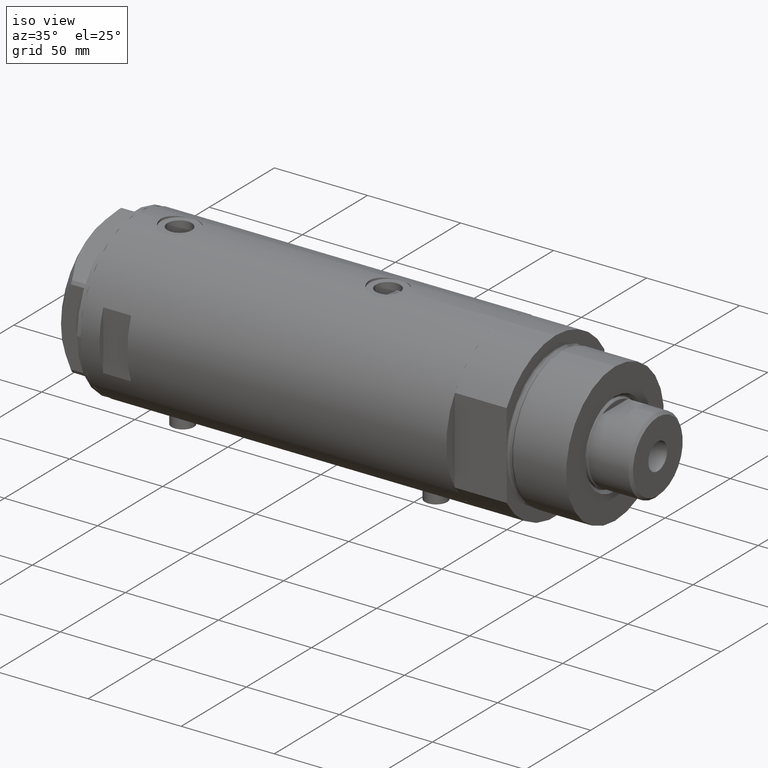
[diagram: clean part render]
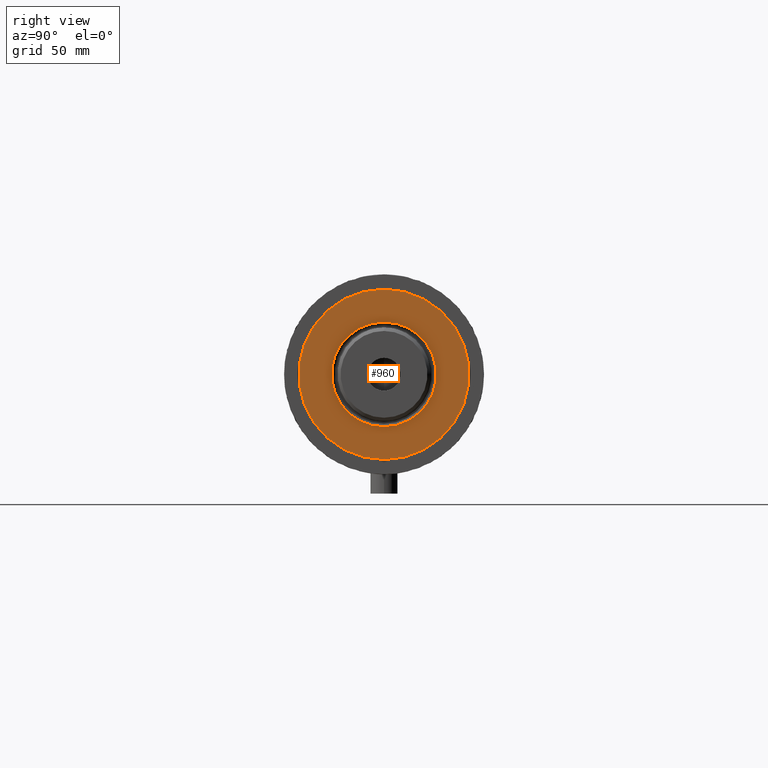
[diagram: tour spotlight — one face highlighted and labeled with its STEP entity id]
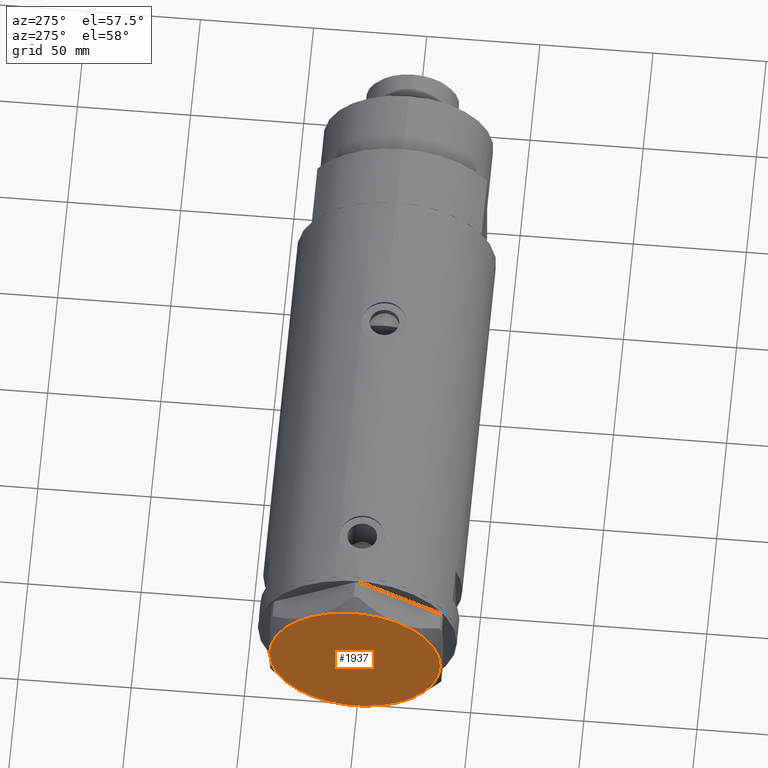
[diagram: tour spotlight — one face highlighted and labeled with its STEP entity id]
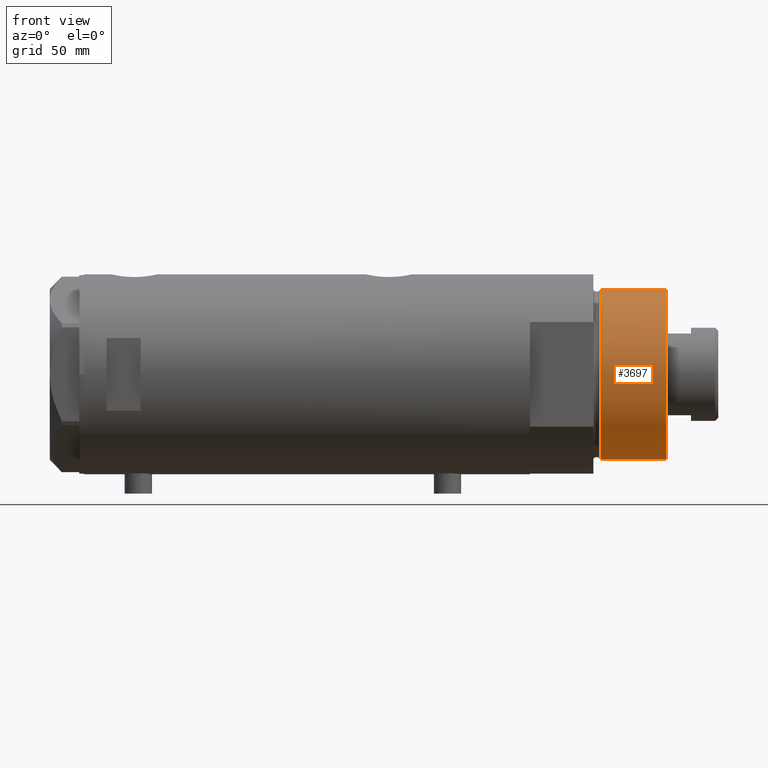
[diagram: tour spotlight — one face highlighted and labeled with its STEP entity id]
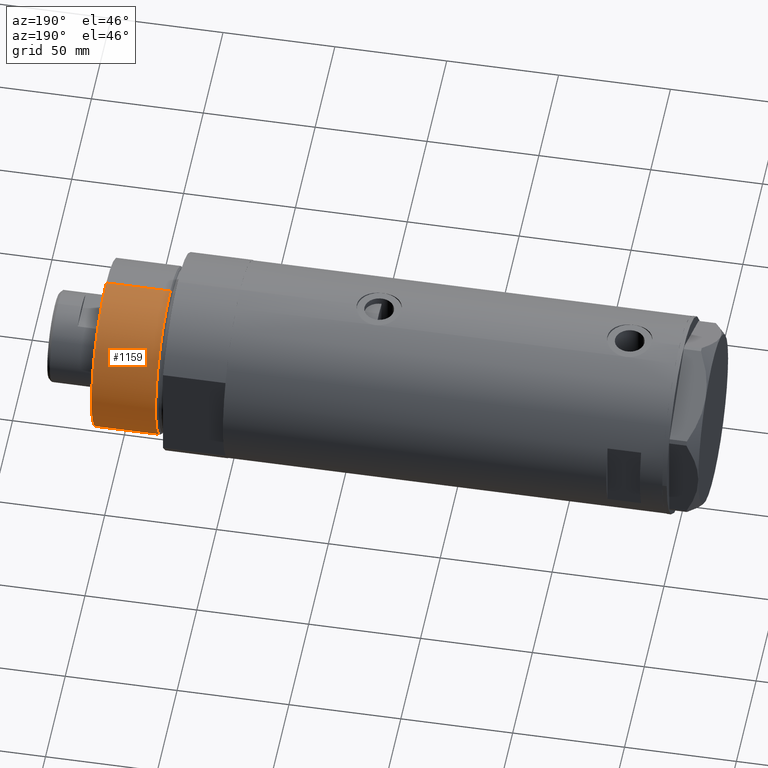
[diagram: tour spotlight — one face highlighted and labeled with its STEP entity id]
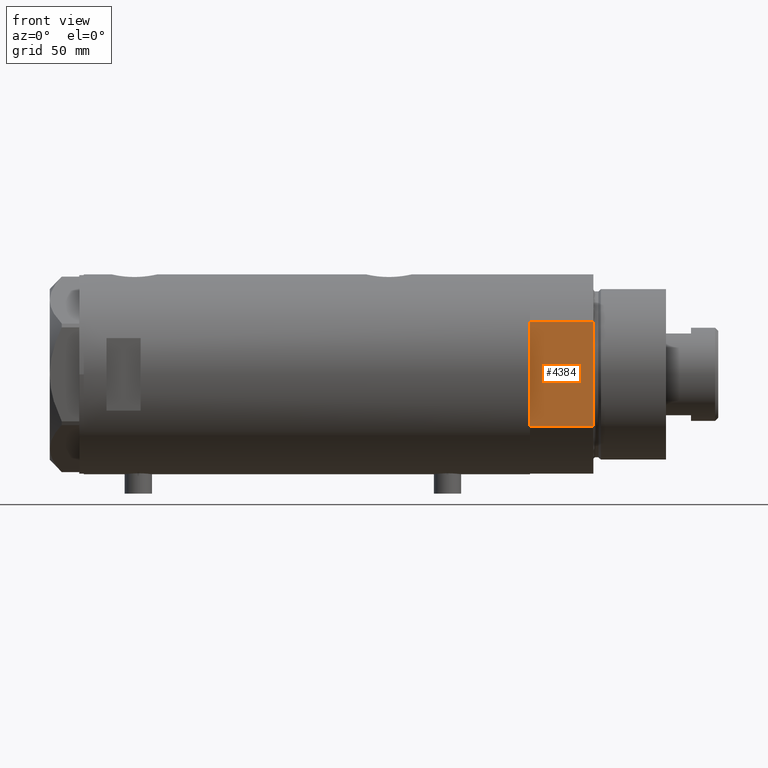
[diagram: tour spotlight — one face highlighted and labeled with its STEP entity id]
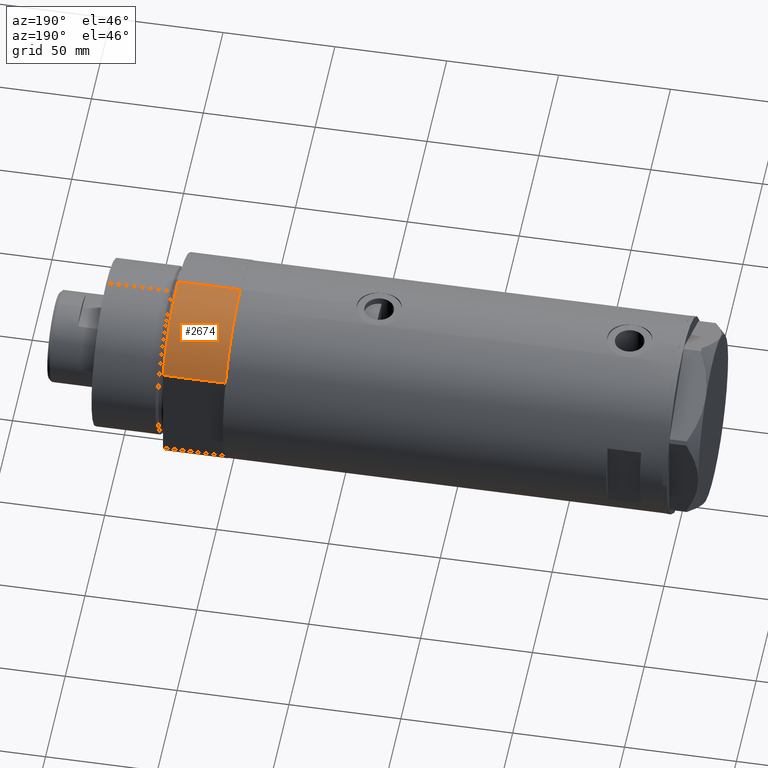
[diagram: tour spotlight — one face highlighted and labeled with its STEP entity id]
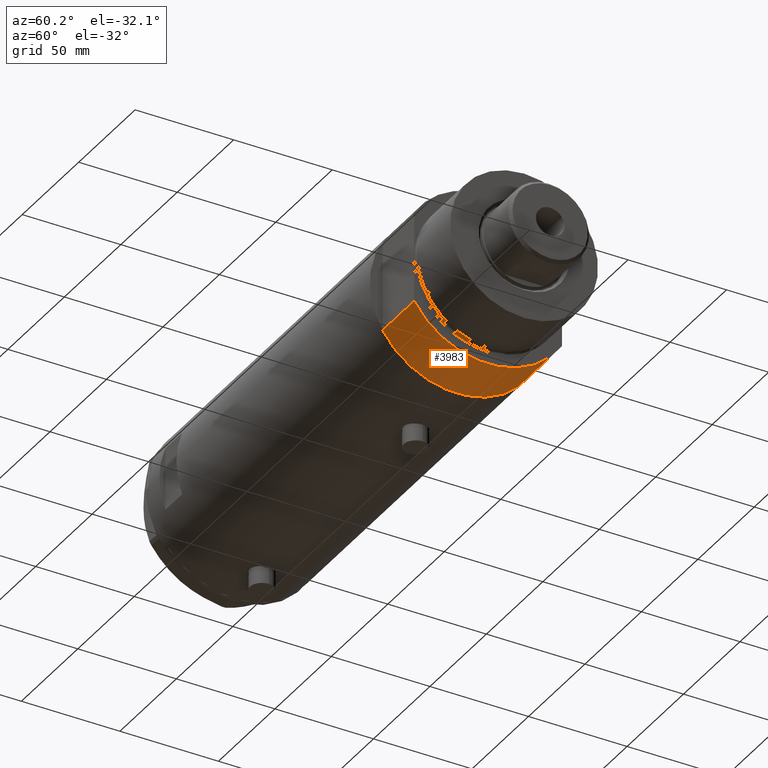
[diagram: tour spotlight — one face highlighted and labeled with its STEP entity id]
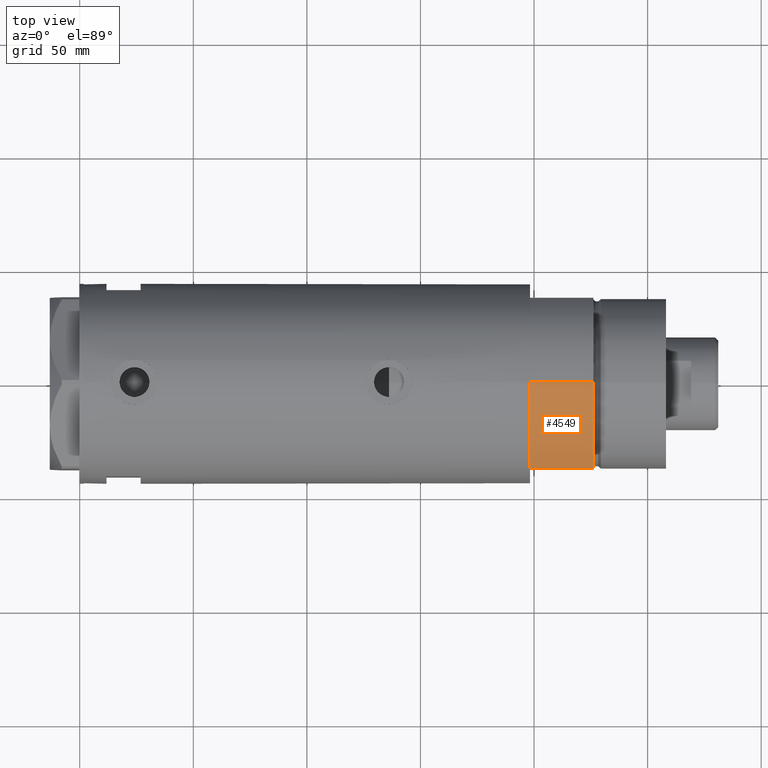
[diagram: tour spotlight — one face highlighted and labeled with its STEP entity id]
A machine part: a face-by-face anatomy tour. The part has 121 B-rep faces; the first image is the clean iso view, then the 8 largest visible faces are spotlighted one at a time (largest first), each with its STEP entity span.

Face 1 — right view, entity #960. In plain terms, the highlighted planar face has unit normal (1, 0, -0).
Definition (entity closure, byte-faithful):
#112 = VERTEX_POINT ( 'NONE', #3306 ) ;
#126 = AXIS2_PLACEMENT_3D ( 'NONE', #1141, #3520, #754 ) ;
#151 = DIRECTION ( 'NONE',  ( 0.000000000000000000, 0.000000000000000000, 1.000000000000000000 ) ) ;
#296 = PLANE ( 'NONE',  #620 ) ;
#344 = AXIS2_PLACEMENT_3D ( 'NONE', #1166, #3273, #4332 ) ;
#458 = CARTESIAN_POINT ( 'NONE',  ( 0.000000000000000000, 0.000000000000000000, 59.89999999999999147 ) ) ;
#502 = AXIS2_PLACEMENT_3D ( 'NONE', #1189, #151, #2589 ) ;
#620 = AXIS2_PLACEMENT_3D ( 'NONE', #1635, #1954, #2365 ) ;
#754 = DIRECTION ( 'NONE',  ( 1.000000000000000000, 0.000000000000000000, 0.000000000000000000 ) ) ;
#926 = CARTESIAN_POINT ( 'NONE',  ( 37.50000000000000711, 4.592425496802575156E-15, 59.89999999999999147 ) ) ;
#927 = ORIENTED_EDGE ( 'NONE', *, *, #4097, .T. ) ;
#960 = ADVANCED_FACE ( 'NONE', ( #3087, #3350 ), #296, .T. ) ;
#1141 = CARTESIAN_POINT ( 'NONE',  ( 0.000000000000000000, 0.000000000000000000, 59.89999999999999147 ) ) ;
#1166 = CARTESIAN_POINT ( 'NONE',  ( 0.000000000000000000, 0.000000000000000000, 59.89999999999999147 ) ) ;
#1189 = CARTESIAN_POINT ( 'NONE',  ( 0.000000000000000000, 0.000000000000000000, 59.89999999999999147 ) ) ;
#1348 = CARTESIAN_POINT ( 'NONE',  ( 23.05000000000002913, 0.000000000000000000, 59.89999999999999147 ) ) ;
#1377 = AXIS2_PLACEMENT_3D ( 'NONE', #458, #2940, #3277 ) ;
#1488 = CARTESIAN_POINT ( 'NONE',  ( -37.50000000000000711, 0.000000000000000000, 59.89999999999999147 ) ) ;
#1635 = CARTESIAN_POINT ( 'NONE',  ( 0.000000000000000000, 0.000000000000000000, 59.89999999999999147 ) ) ;
#1672 = CIRCLE ( 'NONE', #1377, 23.05000000000002913 ) ;
#1757 = ORIENTED_EDGE ( 'NONE', *, *, #3499, .T. ) ;
#1954 = DIRECTION ( 'NONE',  ( 0.000000000000000000, 0.000000000000000000, 1.000000000000000000 ) ) ;
#2000 = ORIENTED_EDGE ( 'NONE', *, *, #4038, .T. ) ;
#2365 = DIRECTION ( 'NONE',  ( 1.000000000000000000, 0.000000000000000000, -0.000000000000000000 ) ) ;
#2589 = DIRECTION ( 'NONE',  ( 1.000000000000000000, 0.000000000000000000, 0.000000000000000000 ) ) ;
#2766 = CIRCLE ( 'NONE', #344, 23.05000000000002913 ) ;
#2774 = EDGE_LOOP ( 'NONE', ( #1757, #927 ) ) ;
#2940 = DIRECTION ( 'NONE',  ( -0.000000000000000000, -0.000000000000000000, -1.000000000000000000 ) ) ;
#2963 = VERTEX_POINT ( 'NONE', #1488 ) ;
#3087 = FACE_BOUND ( 'NONE', #2774, .T. ) ;
#3100 = EDGE_LOOP ( 'NONE', ( #2000, #3946 ) ) ;
#3273 = DIRECTION ( 'NONE',  ( -0.000000000000000000, -0.000000000000000000, -1.000000000000000000 ) ) ;
#3277 = DIRECTION ( 'NONE',  ( 1.000000000000000000, 0.000000000000000000, 0.000000000000000000 ) ) ;
#3306 = CARTESIAN_POINT ( 'NONE',  ( -23.05000000000002913, 2.822810872034651791E-15, 59.89999999999999147 ) ) ;
#3350 = FACE_OUTER_BOUND ( 'NONE', #3100, .T. ) ;
#3499 = EDGE_CURVE ( 'NONE', #3610, #112, #2766, .T. ) ;
#3520 = DIRECTION ( 'NONE',  ( 0.000000000000000000, 0.000000000000000000, 1.000000000000000000 ) ) ;
#3610 = VERTEX_POINT ( 'NONE', #1348 ) ;
#3946 = ORIENTED_EDGE ( 'NONE', *, *, #4103, .T. ) ;
#4038 = EDGE_CURVE ( 'NONE', #2963, #4446, #4388, .T. ) ;
#4097 = EDGE_CURVE ( 'NONE', #112, #3610, #1672, .T. ) ;
#4103 = EDGE_CURVE ( 'NONE', #4446, #2963, #4526, .T. ) ;
#4332 = DIRECTION ( 'NONE',  ( 1.000000000000000000, 0.000000000000000000, 0.000000000000000000 ) ) ;
#4388 = CIRCLE ( 'NONE', #126, 37.50000000000000711 ) ;
#4446 = VERTEX_POINT ( 'NONE', #926 ) ;
#4526 = CIRCLE ( 'NONE', #502, 37.50000000000000711 ) ;

Face 2 — auxiliary view, entity #1937. In plain terms, the highlighted planar face has unit normal (-1, -0, 0).
Definition (entity closure, byte-faithful):
#4 = CARTESIAN_POINT ( 'NONE',  ( 0.000000000000000000, 0.000000000000000000, 13.00000000000000000 ) ) ;
#75 = VERTEX_POINT ( 'NONE', #1882 ) ;
#102 = DIRECTION ( 'NONE',  ( 0.000000000000000000, 0.000000000000000000, 1.000000000000000000 ) ) ;
#276 = AXIS2_PLACEMENT_3D ( 'NONE', #4, #3867, #677 ) ;
#291 = DIRECTION ( 'NONE',  ( 1.000000000000000000, 0.000000000000000000, 0.000000000000000000 ) ) ;
#301 = DIRECTION ( 'NONE',  ( 0.000000000000000000, 0.000000000000000000, 1.000000000000000000 ) ) ;
#319 = DIRECTION ( 'NONE',  ( 1.000000000000000000, 0.000000000000000000, 0.000000000000000000 ) ) ;
#423 = DIRECTION ( 'NONE',  ( 1.000000000000000000, 0.000000000000000000, 0.000000000000000000 ) ) ;
#457 = EDGE_CURVE ( 'NONE', #3925, #4039, #2010, .T. ) ;
#479 = AXIS2_PLACEMENT_3D ( 'NONE', #3091, #301, #319 ) ;
#608 = VERTEX_POINT ( 'NONE', #1410 ) ;
#677 = DIRECTION ( 'NONE',  ( 1.000000000000000000, 0.000000000000000000, 0.000000000000000000 ) ) ;
#781 = CARTESIAN_POINT ( 'NONE',  ( 0.000000000000000000, 0.000000000000000000, 13.00000000000000000 ) ) ;
#914 = DIRECTION ( 'NONE',  ( 0.000000000000000000, 0.000000000000000000, 1.000000000000000000 ) ) ;
#978 = DIRECTION ( 'NONE',  ( 0.000000000000000000, 0.000000000000000000, 1.000000000000000000 ) ) ;
#1123 = CARTESIAN_POINT ( 'NONE',  ( 37.75000000000000711, 1.802777518484591547E-14, 13.00000000000000000 ) ) ;
#1163 = CIRCLE ( 'NONE', #3855, 37.75000000000000000 ) ;
#1185 = EDGE_CURVE ( 'NONE', #608, #2738, #1580, .T. ) ;
#1314 = DIRECTION ( 'NONE',  ( 1.000000000000000000, 0.000000000000000000, 0.000000000000000000 ) ) ;
#1410 = CARTESIAN_POINT ( 'NONE',  ( -37.75000000000000000, -1.201851678989727067E-14, 13.00000000000000000 ) ) ;
#1580 = CIRCLE ( 'NONE', #479, 37.75000000000000000 ) ;
#1688 = EDGE_CURVE ( 'NONE', #1946, #3925, #2019, .T. ) ;
#1752 = ORIENTED_EDGE ( 'NONE', *, *, #1185, .T. ) ;
#1812 = FACE_OUTER_BOUND ( 'NONE', #3600, .T. ) ;
#1871 = CARTESIAN_POINT ( 'NONE',  ( 18.87499999999998579, -32.69245899286256218, 13.00000000000000000 ) ) ;
#1882 = CARTESIAN_POINT ( 'NONE',  ( -18.87499999999999645, 32.69245899286256218, 13.00000000000000000 ) ) ;
#1928 = ORIENTED_EDGE ( 'NONE', *, *, #2973, .T. ) ;
#1937 = ADVANCED_FACE ( 'NONE', ( #1812 ), #3247, .T. ) ;
#1946 = VERTEX_POINT ( 'NONE', #1871 ) ;
#2010 = CIRCLE ( 'NONE', #3545, 37.75000000000000000 ) ;
#2019 = CIRCLE ( 'NONE', #4501, 37.75000000000000000 ) ;
#2064 = DIRECTION ( 'NONE',  ( 0.000000000000000000, 0.000000000000000000, 1.000000000000000000 ) ) ;
#2159 = CARTESIAN_POINT ( 'NONE',  ( 18.87500000000000000, 32.69245899286255508, 13.00000000000000000 ) ) ;
#2571 = ORIENTED_EDGE ( 'NONE', *, *, #1688, .T. ) ;
#2659 = CARTESIAN_POINT ( 'NONE',  ( 0.000000000000000000, 0.000000000000000000, 13.00000000000000000 ) ) ;
#2738 = VERTEX_POINT ( 'NONE', #4058 ) ;
#2973 = EDGE_CURVE ( 'NONE', #4039, #75, #3122, .T. ) ;
#3019 = ORIENTED_EDGE ( 'NONE', *, *, #3871, .T. ) ;
#3058 = CIRCLE ( 'NONE', #276, 37.75000000000000000 ) ;
#3091 = CARTESIAN_POINT ( 'NONE',  ( 0.000000000000000000, 0.000000000000000000, 13.00000000000000000 ) ) ;
#3122 = CIRCLE ( 'NONE', #4008, 37.75000000000000000 ) ;
#3182 = ORIENTED_EDGE ( 'NONE', *, *, #3678, .T. ) ;
#3200 = DIRECTION ( 'NONE',  ( 1.000000000000000000, 0.000000000000000000, -0.000000000000000000 ) ) ;
#3247 = PLANE ( 'NONE',  #3932 ) ;
#3320 = DIRECTION ( 'NONE',  ( 1.000000000000000000, 0.000000000000000000, 0.000000000000000000 ) ) ;
#3431 = CARTESIAN_POINT ( 'NONE',  ( 0.000000000000000000, 0.000000000000000000, 13.00000000000000000 ) ) ;
#3454 = CARTESIAN_POINT ( 'NONE',  ( 0.000000000000000000, 0.000000000000000000, 13.00000000000000000 ) ) ;
#3545 = AXIS2_PLACEMENT_3D ( 'NONE', #2659, #914, #3320 ) ;
#3592 = DIRECTION ( 'NONE',  ( 0.000000000000000000, 0.000000000000000000, 1.000000000000000000 ) ) ;
#3600 = EDGE_LOOP ( 'NONE', ( #2571, #3727, #1928, #3019, #1752, #3182 ) ) ;
#3678 = EDGE_CURVE ( 'NONE', #2738, #1946, #1163, .T. ) ;
#3727 = ORIENTED_EDGE ( 'NONE', *, *, #457, .T. ) ;
#3855 = AXIS2_PLACEMENT_3D ( 'NONE', #3454, #2064, #1314 ) ;
#3867 = DIRECTION ( 'NONE',  ( 0.000000000000000000, 0.000000000000000000, 1.000000000000000000 ) ) ;
#3871 = EDGE_CURVE ( 'NONE', #75, #608, #3058, .T. ) ;
#3907 = CARTESIAN_POINT ( 'NONE',  ( 0.000000000000000000, 0.000000000000000000, 13.00000000000000000 ) ) ;
#3925 = VERTEX_POINT ( 'NONE', #1123 ) ;
#3932 = AXIS2_PLACEMENT_3D ( 'NONE', #781, #102, #3200 ) ;
#4008 = AXIS2_PLACEMENT_3D ( 'NONE', #3907, #3592, #423 ) ;
#4039 = VERTEX_POINT ( 'NONE', #2159 ) ;
#4058 = CARTESIAN_POINT ( 'NONE',  ( -18.87499999999999645, -32.69245899286255508, 13.00000000000000000 ) ) ;
#4501 = AXIS2_PLACEMENT_3D ( 'NONE', #3431, #978, #291 ) ;

Face 3 — front view, entity #3697. In plain terms, the highlighted cylindrical surface (partial cylindrical patch) has radius 37.5 mm, axis along (-1, -0, 0).
Definition (entity closure, byte-faithful):
#35 = ORIENTED_EDGE ( 'NONE', *, *, #4038, .F. ) ;
#101 = LINE ( 'NONE', #808, #1868 ) ;
#126 = AXIS2_PLACEMENT_3D ( 'NONE', #1141, #3520, #754 ) ;
#265 = CARTESIAN_POINT ( 'NONE',  ( 37.50000000000000711, 4.592425496802575156E-15, 31.27384048104054415 ) ) ;
#390 = CARTESIAN_POINT ( 'NONE',  ( 37.50000000000000711, 4.592425496802575156E-15, 59.89999999999999147 ) ) ;
#396 = ORIENTED_EDGE ( 'NONE', *, *, #4204, .T. ) ;
#611 = EDGE_CURVE ( 'NONE', #2963, #2715, #101, .T. ) ;
#718 = CIRCLE ( 'NONE', #3205, 37.50000000000000711 ) ;
#754 = DIRECTION ( 'NONE',  ( 1.000000000000000000, 0.000000000000000000, 0.000000000000000000 ) ) ;
#808 = CARTESIAN_POINT ( 'NONE',  ( -37.50000000000000711, 0.000000000000000000, 59.89999999999999147 ) ) ;
#926 = CARTESIAN_POINT ( 'NONE',  ( 37.50000000000000711, 4.592425496802575156E-15, 59.89999999999999147 ) ) ;
#949 = CARTESIAN_POINT ( 'NONE',  ( 0.000000000000000000, 0.000000000000000000, 59.89999999999999147 ) ) ;
#1079 = AXIS2_PLACEMENT_3D ( 'NONE', #949, #1677, #4451 ) ;
#1141 = CARTESIAN_POINT ( 'NONE',  ( 0.000000000000000000, 0.000000000000000000, 59.89999999999999147 ) ) ;
#1259 = ORIENTED_EDGE ( 'NONE', *, *, #1321, .F. ) ;
#1321 = EDGE_CURVE ( 'NONE', #4446, #1685, #3973, .T. ) ;
#1384 = EDGE_LOOP ( 'NONE', ( #1259, #35, #3301, #396 ) ) ;
#1488 = CARTESIAN_POINT ( 'NONE',  ( -37.50000000000000711, 0.000000000000000000, 59.89999999999999147 ) ) ;
#1677 = DIRECTION ( 'NONE',  ( -0.000000000000000000, -0.000000000000000000, -1.000000000000000000 ) ) ;
#1685 = VERTEX_POINT ( 'NONE', #265 ) ;
#1868 = VECTOR ( 'NONE', #3888, 1000.000000000000000 ) ;
#2175 = VECTOR ( 'NONE', #2891, 1000.000000000000000 ) ;
#2357 = CARTESIAN_POINT ( 'NONE',  ( 0.000000000000000000, 0.000000000000000000, 31.27384048104054415 ) ) ;
#2372 = DIRECTION ( 'NONE',  ( 1.000000000000000000, 0.000000000000000000, 0.000000000000000000 ) ) ;
#2715 = VERTEX_POINT ( 'NONE', #4391 ) ;
#2891 = DIRECTION ( 'NONE',  ( -0.000000000000000000, -0.000000000000000000, -1.000000000000000000 ) ) ;
#2963 = VERTEX_POINT ( 'NONE', #1488 ) ;
#3205 = AXIS2_PLACEMENT_3D ( 'NONE', #2357, #3380, #2372 ) ;
#3301 = ORIENTED_EDGE ( 'NONE', *, *, #611, .T. ) ;
#3380 = DIRECTION ( 'NONE',  ( -0.000000000000000000, -0.000000000000000000, 1.000000000000000000 ) ) ;
#3520 = DIRECTION ( 'NONE',  ( 0.000000000000000000, 0.000000000000000000, 1.000000000000000000 ) ) ;
#3697 = ADVANCED_FACE ( 'NONE', ( #4110 ), #4087, .T. ) ;
#3888 = DIRECTION ( 'NONE',  ( -0.000000000000000000, -0.000000000000000000, -1.000000000000000000 ) ) ;
#3973 = LINE ( 'NONE', #390, #2175 ) ;
#4038 = EDGE_CURVE ( 'NONE', #2963, #4446, #4388, .T. ) ;
#4087 = CYLINDRICAL_SURFACE ( 'NONE', #1079, 37.50000000000000711 ) ;
#4110 = FACE_OUTER_BOUND ( 'NONE', #1384, .T. ) ;
#4204 = EDGE_CURVE ( 'NONE', #2715, #1685, #718, .T. ) ;
#4388 = CIRCLE ( 'NONE', #126, 37.50000000000000711 ) ;
#4391 = CARTESIAN_POINT ( 'NONE',  ( -37.50000000000000711, 0.000000000000000000, 31.27384048104054415 ) ) ;
#4446 = VERTEX_POINT ( 'NONE', #926 ) ;
#4451 = DIRECTION ( 'NONE',  ( -1.000000000000000000, 0.000000000000000000, 0.000000000000000000 ) ) ;

Face 4 — auxiliary view, entity #1159. In plain terms, the highlighted cylindrical surface (partial cylindrical patch) has radius 37.5 mm, axis along (-1, -0, 0).
Definition (entity closure, byte-faithful):
#101 = LINE ( 'NONE', #808, #1868 ) ;
#151 = DIRECTION ( 'NONE',  ( 0.000000000000000000, 0.000000000000000000, 1.000000000000000000 ) ) ;
#265 = CARTESIAN_POINT ( 'NONE',  ( 37.50000000000000711, 4.592425496802575156E-15, 31.27384048104054415 ) ) ;
#390 = CARTESIAN_POINT ( 'NONE',  ( 37.50000000000000711, 4.592425496802575156E-15, 59.89999999999999147 ) ) ;
#502 = AXIS2_PLACEMENT_3D ( 'NONE', #1189, #151, #2589 ) ;
#611 = EDGE_CURVE ( 'NONE', #2963, #2715, #101, .T. ) ;
#808 = CARTESIAN_POINT ( 'NONE',  ( -37.50000000000000711, 0.000000000000000000, 59.89999999999999147 ) ) ;
#926 = CARTESIAN_POINT ( 'NONE',  ( 37.50000000000000711, 4.592425496802575156E-15, 59.89999999999999147 ) ) ;
#1059 = AXIS2_PLACEMENT_3D ( 'NONE', #2919, #3966, #1876 ) ;
#1159 = ADVANCED_FACE ( 'NONE', ( #3909 ), #1507, .T. ) ;
#1189 = CARTESIAN_POINT ( 'NONE',  ( 0.000000000000000000, 0.000000000000000000, 59.89999999999999147 ) ) ;
#1321 = EDGE_CURVE ( 'NONE', #4446, #1685, #3973, .T. ) ;
#1488 = CARTESIAN_POINT ( 'NONE',  ( -37.50000000000000711, 0.000000000000000000, 59.89999999999999147 ) ) ;
#1499 = EDGE_CURVE ( 'NONE', #1685, #2715, #3107, .T. ) ;
#1507 = CYLINDRICAL_SURFACE ( 'NONE', #3038, 37.50000000000000711 ) ;
#1685 = VERTEX_POINT ( 'NONE', #265 ) ;
#1861 = ORIENTED_EDGE ( 'NONE', *, *, #4103, .F. ) ;
#1868 = VECTOR ( 'NONE', #3888, 1000.000000000000000 ) ;
#1876 = DIRECTION ( 'NONE',  ( 1.000000000000000000, 0.000000000000000000, 0.000000000000000000 ) ) ;
#2175 = VECTOR ( 'NONE', #2891, 1000.000000000000000 ) ;
#2178 = CARTESIAN_POINT ( 'NONE',  ( 0.000000000000000000, 0.000000000000000000, 59.89999999999999147 ) ) ;
#2589 = DIRECTION ( 'NONE',  ( 1.000000000000000000, 0.000000000000000000, 0.000000000000000000 ) ) ;
#2715 = VERTEX_POINT ( 'NONE', #4391 ) ;
#2891 = DIRECTION ( 'NONE',  ( -0.000000000000000000, -0.000000000000000000, -1.000000000000000000 ) ) ;
#2894 = DIRECTION ( 'NONE',  ( -0.000000000000000000, -0.000000000000000000, -1.000000000000000000 ) ) ;
#2919 = CARTESIAN_POINT ( 'NONE',  ( 0.000000000000000000, 0.000000000000000000, 31.27384048104054415 ) ) ;
#2963 = VERTEX_POINT ( 'NONE', #1488 ) ;
#3038 = AXIS2_PLACEMENT_3D ( 'NONE', #2178, #2894, #3935 ) ;
#3107 = CIRCLE ( 'NONE', #1059, 37.50000000000000711 ) ;
#3781 = EDGE_LOOP ( 'NONE', ( #1861, #3821, #4162, #3947 ) ) ;
#3821 = ORIENTED_EDGE ( 'NONE', *, *, #1321, .T. ) ;
#3888 = DIRECTION ( 'NONE',  ( -0.000000000000000000, -0.000000000000000000, -1.000000000000000000 ) ) ;
#3909 = FACE_OUTER_BOUND ( 'NONE', #3781, .T. ) ;
#3935 = DIRECTION ( 'NONE',  ( -1.000000000000000000, 0.000000000000000000, 0.000000000000000000 ) ) ;
#3947 = ORIENTED_EDGE ( 'NONE', *, *, #611, .F. ) ;
#3966 = DIRECTION ( 'NONE',  ( -0.000000000000000000, -0.000000000000000000, 1.000000000000000000 ) ) ;
#3973 = LINE ( 'NONE', #390, #2175 ) ;
#4103 = EDGE_CURVE ( 'NONE', #4446, #2963, #4526, .T. ) ;
#4162 = ORIENTED_EDGE ( 'NONE', *, *, #1499, .T. ) ;
#4391 = CARTESIAN_POINT ( 'NONE',  ( -37.50000000000000711, 0.000000000000000000, 31.27384048104054415 ) ) ;
#4446 = VERTEX_POINT ( 'NONE', #926 ) ;
#4526 = CIRCLE ( 'NONE', #502, 37.50000000000000711 ) ;

Face 5 — front view, entity #4384. In plain terms, the highlighted planar face has unit normal (-0, 1, 0).
Definition (entity closure, byte-faithful):
#18 = CARTESIAN_POINT ( 'NONE',  ( -23.01629857296780557, -37.50000000000000000, 0.000000000000000000 ) ) ;
#123 = VECTOR ( 'NONE', #969, 1000.000000000000000 ) ;
#166 = EDGE_CURVE ( 'NONE', #633, #1136, #3389, .T. ) ;
#179 = CARTESIAN_POINT ( 'NONE',  ( -23.01629857296780557, -37.50000000000000000, 27.89999999999999858 ) ) ;
#331 = DIRECTION ( 'NONE',  ( -1.000000000000000000, -0.000000000000000000, -0.000000000000000000 ) ) ;
#345 = ORIENTED_EDGE ( 'NONE', *, *, #2885, .F. ) ;
#382 = VERTEX_POINT ( 'NONE', #1056 ) ;
#408 = VECTOR ( 'NONE', #1842, 1000.000000000000000 ) ;
#436 = LINE ( 'NONE', #3232, #408 ) ;
#465 = CARTESIAN_POINT ( 'NONE',  ( -13.91941090707505957, -37.50000000000000000, 0.000000000000000000 ) ) ;
#601 = CARTESIAN_POINT ( 'NONE',  ( -23.01629857296780557, -37.50000000000000000, 0.000000000000000000 ) ) ;
#633 = VERTEX_POINT ( 'NONE', #1494 ) ;
#785 = VECTOR ( 'NONE', #4123, 1000.000000000000000 ) ;
#951 = DIRECTION ( 'NONE',  ( -0.000000000000000000, 1.000000000000000000, 0.000000000000000000 ) ) ;
#969 = DIRECTION ( 'NONE',  ( -0.000000000000000000, -0.000000000000000000, 1.000000000000000000 ) ) ;
#1017 = LINE ( 'NONE', #601, #2324 ) ;
#1056 = CARTESIAN_POINT ( 'NONE',  ( 23.01629857296780557, -37.50000000000000000, 27.89999999999999858 ) ) ;
#1136 = VERTEX_POINT ( 'NONE', #4236 ) ;
#1354 = VERTEX_POINT ( 'NONE', #465 ) ;
#1475 = ORIENTED_EDGE ( 'NONE', *, *, #166, .T. ) ;
#1476 = EDGE_CURVE ( 'NONE', #382, #633, #436, .T. ) ;
#1494 = CARTESIAN_POINT ( 'NONE',  ( 0.000000000000000000, -37.50000000000000000, 27.89999999999999858 ) ) ;
#1632 = EDGE_CURVE ( 'NONE', #3608, #1136, #2008, .T. ) ;
#1842 = DIRECTION ( 'NONE',  ( -1.000000000000000000, -0.000000000000000000, -0.000000000000000000 ) ) ;
#1955 = CARTESIAN_POINT ( 'NONE',  ( -23.01629857296780557, -37.50000000000000000, 0.000000000000000000 ) ) ;
#2008 = LINE ( 'NONE', #4464, #785 ) ;
#2023 = ORIENTED_EDGE ( 'NONE', *, *, #1632, .F. ) ;
#2055 = EDGE_CURVE ( 'NONE', #1354, #3608, #3379, .T. ) ;
#2082 = LINE ( 'NONE', #2881, #4020 ) ;
#2196 = DIRECTION ( 'NONE',  ( -1.000000000000000000, -0.000000000000000000, -0.000000000000000000 ) ) ;
#2244 = VECTOR ( 'NONE', #3045, 1000.000000000000000 ) ;
#2272 = VERTEX_POINT ( 'NONE', #3011 ) ;
#2324 = VECTOR ( 'NONE', #2419, 1000.000000000000000 ) ;
#2385 = LINE ( 'NONE', #2751, #123 ) ;
#2419 = DIRECTION ( 'NONE',  ( -1.000000000000000000, -0.000000000000000000, -0.000000000000000000 ) ) ;
#2429 = ORIENTED_EDGE ( 'NONE', *, *, #1476, .T. ) ;
#2631 = PLANE ( 'NONE',  #3944 ) ;
#2751 = CARTESIAN_POINT ( 'NONE',  ( 23.01629857296780557, -37.50000000000000000, 0.000000000000000000 ) ) ;
#2835 = VECTOR ( 'NONE', #2196, 1000.000000000000000 ) ;
#2881 = CARTESIAN_POINT ( 'NONE',  ( -23.01629857296780557, -37.50000000000000000, 0.000000000000000000 ) ) ;
#2885 = EDGE_CURVE ( 'NONE', #2272, #1354, #1017, .T. ) ;
#3011 = CARTESIAN_POINT ( 'NONE',  ( 13.91941090707505957, -37.50000000000000000, 0.000000000000000000 ) ) ;
#3045 = DIRECTION ( 'NONE',  ( -1.000000000000000000, -0.000000000000000000, -0.000000000000000000 ) ) ;
#3159 = VERTEX_POINT ( 'NONE', #3510 ) ;
#3232 = CARTESIAN_POINT ( 'NONE',  ( -23.01629857296780557, -37.50000000000000000, 27.89999999999999858 ) ) ;
#3379 = LINE ( 'NONE', #18, #2835 ) ;
#3389 = LINE ( 'NONE', #179, #2244 ) ;
#3433 = ORIENTED_EDGE ( 'NONE', *, *, #3956, .F. ) ;
#3510 = CARTESIAN_POINT ( 'NONE',  ( 23.01629857296780557, -37.50000000000000000, 0.000000000000000000 ) ) ;
#3608 = VERTEX_POINT ( 'NONE', #3769 ) ;
#3611 = EDGE_CURVE ( 'NONE', #3159, #382, #2385, .T. ) ;
#3715 = DIRECTION ( 'NONE',  ( 0.000000000000000000, -0.000000000000000000, 1.000000000000000000 ) ) ;
#3769 = CARTESIAN_POINT ( 'NONE',  ( -23.01629857296780557, -37.50000000000000000, 0.000000000000000000 ) ) ;
#3944 = AXIS2_PLACEMENT_3D ( 'NONE', #1955, #951, #3715 ) ;
#3956 = EDGE_CURVE ( 'NONE', #3159, #2272, #2082, .T. ) ;
#4020 = VECTOR ( 'NONE', #331, 1000.000000000000000 ) ;
#4090 = FACE_OUTER_BOUND ( 'NONE', #4428, .T. ) ;
#4123 = DIRECTION ( 'NONE',  ( -0.000000000000000000, -0.000000000000000000, 1.000000000000000000 ) ) ;
#4178 = ORIENTED_EDGE ( 'NONE', *, *, #2055, .F. ) ;
#4236 = CARTESIAN_POINT ( 'NONE',  ( -23.01629857296780557, -37.50000000000000000, 27.89999999999999858 ) ) ;
#4384 = ADVANCED_FACE ( 'NONE', ( #4090 ), #2631, .F. ) ;
#4428 = EDGE_LOOP ( 'NONE', ( #2429, #1475, #2023, #4178, #345, #3433, #4495 ) ) ;
#4464 = CARTESIAN_POINT ( 'NONE',  ( -23.01629857296780557, -37.50000000000000000, 0.000000000000000000 ) ) ;
#4495 = ORIENTED_EDGE ( 'NONE', *, *, #3611, .T. ) ;

Face 6 — auxiliary view, entity #2674. In plain terms, the highlighted cylindrical surface (partial cylindrical patch) has radius 44 mm, axis along (-1, -0, 0).
Definition (entity closure, byte-faithful):
#137 = CARTESIAN_POINT ( 'NONE',  ( -23.01629857296780557, 37.50000000000000000, 27.89999999999999858 ) ) ;
#352 = ORIENTED_EDGE ( 'NONE', *, *, #3189, .F. ) ;
#418 = VERTEX_POINT ( 'NONE', #137 ) ;
#430 = CIRCLE ( 'NONE', #1381, 44.00000000000000000 ) ;
#687 = DIRECTION ( 'NONE',  ( 1.000000000000000000, 0.000000000000000000, 0.000000000000000000 ) ) ;
#743 = LINE ( 'NONE', #821, #2694 ) ;
#821 = CARTESIAN_POINT ( 'NONE',  ( -23.01629857296780557, 37.50000000000000000, 0.000000000000000000 ) ) ;
#838 = CARTESIAN_POINT ( 'NONE',  ( -44.00000000000000000, 0.000000000000000000, 27.89999999999999858 ) ) ;
#861 = DIRECTION ( 'NONE',  ( -0.000000000000000000, -0.000000000000000000, -1.000000000000000000 ) ) ;
#1024 = VERTEX_POINT ( 'NONE', #1103 ) ;
#1033 = DIRECTION ( 'NONE',  ( 0.000000000000000000, 0.000000000000000000, 1.000000000000000000 ) ) ;
#1103 = CARTESIAN_POINT ( 'NONE',  ( -44.00000000000000000, 0.000000000000000000, 0.000000000000000000 ) ) ;
#1155 = CYLINDRICAL_SURFACE ( 'NONE', #1518, 44.00000000000000000 ) ;
#1225 = DIRECTION ( 'NONE',  ( 0.000000000000000000, 0.000000000000000000, 1.000000000000000000 ) ) ;
#1339 = VERTEX_POINT ( 'NONE', #838 ) ;
#1381 = AXIS2_PLACEMENT_3D ( 'NONE', #2323, #1225, #4026 ) ;
#1458 = CARTESIAN_POINT ( 'NONE',  ( 0.000000000000000000, 0.000000000000000000, 27.89999999999999858 ) ) ;
#1518 = AXIS2_PLACEMENT_3D ( 'NONE', #2946, #861, #1910 ) ;
#1532 = VECTOR ( 'NONE', #1624, 1000.000000000000000 ) ;
#1624 = DIRECTION ( 'NONE',  ( -0.000000000000000000, -0.000000000000000000, -1.000000000000000000 ) ) ;
#1668 = CARTESIAN_POINT ( 'NONE',  ( -44.00000000000000000, 0.000000000000000000, 27.89999999999999858 ) ) ;
#1738 = CIRCLE ( 'NONE', #4381, 44.00000000000000000 ) ;
#1900 = ORIENTED_EDGE ( 'NONE', *, *, #4502, .T. ) ;
#1910 = DIRECTION ( 'NONE',  ( -1.000000000000000000, 0.000000000000000000, 0.000000000000000000 ) ) ;
#1925 = VERTEX_POINT ( 'NONE', #3939 ) ;
#2068 = ORIENTED_EDGE ( 'NONE', *, *, #3229, .F. ) ;
#2323 = CARTESIAN_POINT ( 'NONE',  ( 0.000000000000000000, 0.000000000000000000, 0.000000000000000000 ) ) ;
#2548 = EDGE_LOOP ( 'NONE', ( #3345, #352, #2068, #1900 ) ) ;
#2578 = DIRECTION ( 'NONE',  ( -0.000000000000000000, -0.000000000000000000, 1.000000000000000000 ) ) ;
#2674 = ADVANCED_FACE ( 'NONE', ( #3308 ), #1155, .T. ) ;
#2694 = VECTOR ( 'NONE', #2578, 1000.000000000000000 ) ;
#2946 = CARTESIAN_POINT ( 'NONE',  ( 0.000000000000000000, 0.000000000000000000, 27.89999999999999858 ) ) ;
#3039 = LINE ( 'NONE', #1668, #1532 ) ;
#3189 = EDGE_CURVE ( 'NONE', #418, #1339, #1738, .T. ) ;
#3229 = EDGE_CURVE ( 'NONE', #1925, #418, #743, .T. ) ;
#3308 = FACE_OUTER_BOUND ( 'NONE', #2548, .T. ) ;
#3345 = ORIENTED_EDGE ( 'NONE', *, *, #4175, .F. ) ;
#3939 = CARTESIAN_POINT ( 'NONE',  ( -23.01629857296780557, 37.50000000000000000, 0.000000000000000000 ) ) ;
#4026 = DIRECTION ( 'NONE',  ( 1.000000000000000000, 0.000000000000000000, 0.000000000000000000 ) ) ;
#4175 = EDGE_CURVE ( 'NONE', #1339, #1024, #3039, .T. ) ;
#4381 = AXIS2_PLACEMENT_3D ( 'NONE', #1458, #1033, #687 ) ;
#4502 = EDGE_CURVE ( 'NONE', #1925, #1024, #430, .T. ) ;

Face 7 — auxiliary view, entity #3983. In plain terms, the highlighted cylindrical surface (partial cylindrical patch) has radius 44 mm, axis along (-1, -0, 0).
Definition (entity closure, byte-faithful):
#123 = VECTOR ( 'NONE', #969, 1000.000000000000000 ) ;
#201 = CIRCLE ( 'NONE', #3425, 44.00000000000000000 ) ;
#320 = DIRECTION ( 'NONE',  ( 0.000000000000000000, 0.000000000000000000, 1.000000000000000000 ) ) ;
#357 = CARTESIAN_POINT ( 'NONE',  ( 23.01629857296780557, 37.50000000000000000, 27.89999999999999858 ) ) ;
#382 = VERTEX_POINT ( 'NONE', #1056 ) ;
#503 = CARTESIAN_POINT ( 'NONE',  ( 0.000000000000000000, 0.000000000000000000, 27.89999999999999858 ) ) ;
#541 = ORIENTED_EDGE ( 'NONE', *, *, #4095, .F. ) ;
#629 = CIRCLE ( 'NONE', #2252, 44.00000000000000000 ) ;
#966 = EDGE_CURVE ( 'NONE', #4079, #2089, #3007, .T. ) ;
#969 = DIRECTION ( 'NONE',  ( -0.000000000000000000, -0.000000000000000000, 1.000000000000000000 ) ) ;
#1056 = CARTESIAN_POINT ( 'NONE',  ( 23.01629857296780557, -37.50000000000000000, 27.89999999999999858 ) ) ;
#1070 = FACE_OUTER_BOUND ( 'NONE', #3228, .T. ) ;
#1085 = ORIENTED_EDGE ( 'NONE', *, *, #966, .T. ) ;
#1331 = CARTESIAN_POINT ( 'NONE',  ( 23.01629857296780557, 37.50000000000000000, 0.000000000000000000 ) ) ;
#1393 = DIRECTION ( 'NONE',  ( -1.000000000000000000, 0.000000000000000000, 0.000000000000000000 ) ) ;
#1457 = CARTESIAN_POINT ( 'NONE',  ( 0.000000000000000000, 0.000000000000000000, 0.000000000000000000 ) ) ;
#1508 = ORIENTED_EDGE ( 'NONE', *, *, #2382, .T. ) ;
#1839 = CYLINDRICAL_SURFACE ( 'NONE', #4316, 44.00000000000000000 ) ;
#2089 = VERTEX_POINT ( 'NONE', #357 ) ;
#2252 = AXIS2_PLACEMENT_3D ( 'NONE', #1457, #320, #4547 ) ;
#2382 = EDGE_CURVE ( 'NONE', #3159, #4079, #629, .T. ) ;
#2385 = LINE ( 'NONE', #2751, #123 ) ;
#2751 = CARTESIAN_POINT ( 'NONE',  ( 23.01629857296780557, -37.50000000000000000, 0.000000000000000000 ) ) ;
#2855 = ORIENTED_EDGE ( 'NONE', *, *, #3611, .F. ) ;
#3007 = LINE ( 'NONE', #1331, #4433 ) ;
#3155 = DIRECTION ( 'NONE',  ( -0.000000000000000000, -0.000000000000000000, -1.000000000000000000 ) ) ;
#3159 = VERTEX_POINT ( 'NONE', #3510 ) ;
#3228 = EDGE_LOOP ( 'NONE', ( #541, #2855, #1508, #1085 ) ) ;
#3230 = CARTESIAN_POINT ( 'NONE',  ( 0.000000000000000000, 0.000000000000000000, 27.89999999999999858 ) ) ;
#3425 = AXIS2_PLACEMENT_3D ( 'NONE', #503, #3616, #3963 ) ;
#3510 = CARTESIAN_POINT ( 'NONE',  ( 23.01629857296780557, -37.50000000000000000, 0.000000000000000000 ) ) ;
#3611 = EDGE_CURVE ( 'NONE', #3159, #382, #2385, .T. ) ;
#3616 = DIRECTION ( 'NONE',  ( 0.000000000000000000, 0.000000000000000000, 1.000000000000000000 ) ) ;
#3963 = DIRECTION ( 'NONE',  ( 1.000000000000000000, 0.000000000000000000, 0.000000000000000000 ) ) ;
#3983 = ADVANCED_FACE ( 'NONE', ( #1070 ), #1839, .T. ) ;
#4007 = CARTESIAN_POINT ( 'NONE',  ( 23.01629857296780557, 37.50000000000000000, 0.000000000000000000 ) ) ;
#4079 = VERTEX_POINT ( 'NONE', #4007 ) ;
#4095 = EDGE_CURVE ( 'NONE', #382, #2089, #201, .T. ) ;
#4130 = DIRECTION ( 'NONE',  ( -0.000000000000000000, -0.000000000000000000, 1.000000000000000000 ) ) ;
#4316 = AXIS2_PLACEMENT_3D ( 'NONE', #3230, #3155, #1393 ) ;
#4433 = VECTOR ( 'NONE', #4130, 1000.000000000000000 ) ;
#4547 = DIRECTION ( 'NONE',  ( 1.000000000000000000, 0.000000000000000000, 0.000000000000000000 ) ) ;

Face 8 — top view, entity #4549. In plain terms, the highlighted cylindrical surface (partial cylindrical patch) has radius 44 mm, axis along (-1, -0, 0).
Definition (entity closure, byte-faithful):
#39 = AXIS2_PLACEMENT_3D ( 'NONE', #2368, #1682, #2349 ) ;
#233 = ORIENTED_EDGE ( 'NONE', *, *, #4175, .T. ) ;
#785 = VECTOR ( 'NONE', #4123, 1000.000000000000000 ) ;
#838 = CARTESIAN_POINT ( 'NONE',  ( -44.00000000000000000, 0.000000000000000000, 27.89999999999999858 ) ) ;
#876 = AXIS2_PLACEMENT_3D ( 'NONE', #2735, #2046, #3392 ) ;
#1001 = CIRCLE ( 'NONE', #4517, 44.00000000000000000 ) ;
#1024 = VERTEX_POINT ( 'NONE', #1103 ) ;
#1103 = CARTESIAN_POINT ( 'NONE',  ( -44.00000000000000000, 0.000000000000000000, 0.000000000000000000 ) ) ;
#1136 = VERTEX_POINT ( 'NONE', #4236 ) ;
#1339 = VERTEX_POINT ( 'NONE', #838 ) ;
#1532 = VECTOR ( 'NONE', #1624, 1000.000000000000000 ) ;
#1552 = EDGE_LOOP ( 'NONE', ( #2207, #233, #3143, #4018 ) ) ;
#1624 = DIRECTION ( 'NONE',  ( -0.000000000000000000, -0.000000000000000000, -1.000000000000000000 ) ) ;
#1632 = EDGE_CURVE ( 'NONE', #3608, #1136, #2008, .T. ) ;
#1668 = CARTESIAN_POINT ( 'NONE',  ( -44.00000000000000000, 0.000000000000000000, 27.89999999999999858 ) ) ;
#1679 = CYLINDRICAL_SURFACE ( 'NONE', #876, 44.00000000000000000 ) ;
#1682 = DIRECTION ( 'NONE',  ( 0.000000000000000000, 0.000000000000000000, 1.000000000000000000 ) ) ;
#1781 = DIRECTION ( 'NONE',  ( 0.000000000000000000, 0.000000000000000000, 1.000000000000000000 ) ) ;
#2008 = LINE ( 'NONE', #4464, #785 ) ;
#2046 = DIRECTION ( 'NONE',  ( -0.000000000000000000, -0.000000000000000000, -1.000000000000000000 ) ) ;
#2207 = ORIENTED_EDGE ( 'NONE', *, *, #2251, .F. ) ;
#2251 = EDGE_CURVE ( 'NONE', #1339, #1136, #2911, .T. ) ;
#2349 = DIRECTION ( 'NONE',  ( 1.000000000000000000, 0.000000000000000000, 0.000000000000000000 ) ) ;
#2368 = CARTESIAN_POINT ( 'NONE',  ( 0.000000000000000000, 0.000000000000000000, 27.89999999999999858 ) ) ;
#2735 = CARTESIAN_POINT ( 'NONE',  ( 0.000000000000000000, 0.000000000000000000, 27.89999999999999858 ) ) ;
#2911 = CIRCLE ( 'NONE', #39, 44.00000000000000000 ) ;
#2930 = EDGE_CURVE ( 'NONE', #1024, #3608, #1001, .T. ) ;
#3039 = LINE ( 'NONE', #1668, #1532 ) ;
#3143 = ORIENTED_EDGE ( 'NONE', *, *, #2930, .T. ) ;
#3392 = DIRECTION ( 'NONE',  ( -1.000000000000000000, 0.000000000000000000, 0.000000000000000000 ) ) ;
#3608 = VERTEX_POINT ( 'NONE', #3769 ) ;
#3769 = CARTESIAN_POINT ( 'NONE',  ( -23.01629857296780557, -37.50000000000000000, 0.000000000000000000 ) ) ;
#4018 = ORIENTED_EDGE ( 'NONE', *, *, #1632, .T. ) ;
#4123 = DIRECTION ( 'NONE',  ( -0.000000000000000000, -0.000000000000000000, 1.000000000000000000 ) ) ;
#4163 = CARTESIAN_POINT ( 'NONE',  ( 0.000000000000000000, 0.000000000000000000, 0.000000000000000000 ) ) ;
#4175 = EDGE_CURVE ( 'NONE', #1339, #1024, #3039, .T. ) ;
#4176 = FACE_OUTER_BOUND ( 'NONE', #1552, .T. ) ;
#4206 = DIRECTION ( 'NONE',  ( 1.000000000000000000, 0.000000000000000000, 0.000000000000000000 ) ) ;
#4236 = CARTESIAN_POINT ( 'NONE',  ( -23.01629857296780557, -37.50000000000000000, 27.89999999999999858 ) ) ;
#4464 = CARTESIAN_POINT ( 'NONE',  ( -23.01629857296780557, -37.50000000000000000, 0.000000000000000000 ) ) ;
#4517 = AXIS2_PLACEMENT_3D ( 'NONE', #4163, #1781, #4206 ) ;
#4549 = ADVANCED_FACE ( 'NONE', ( #4176 ), #1679, .T. ) ;